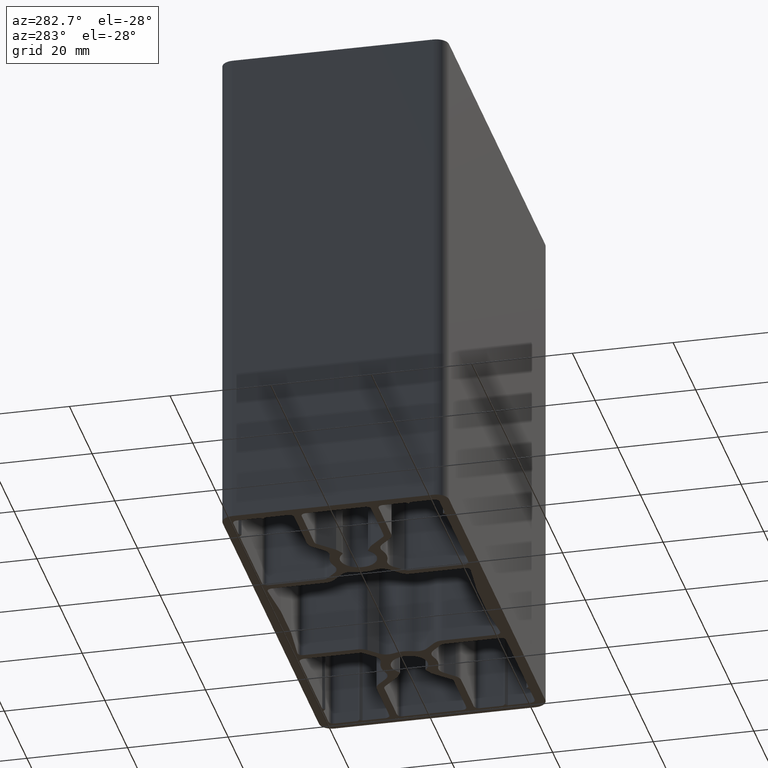
[diagram: clean part render]
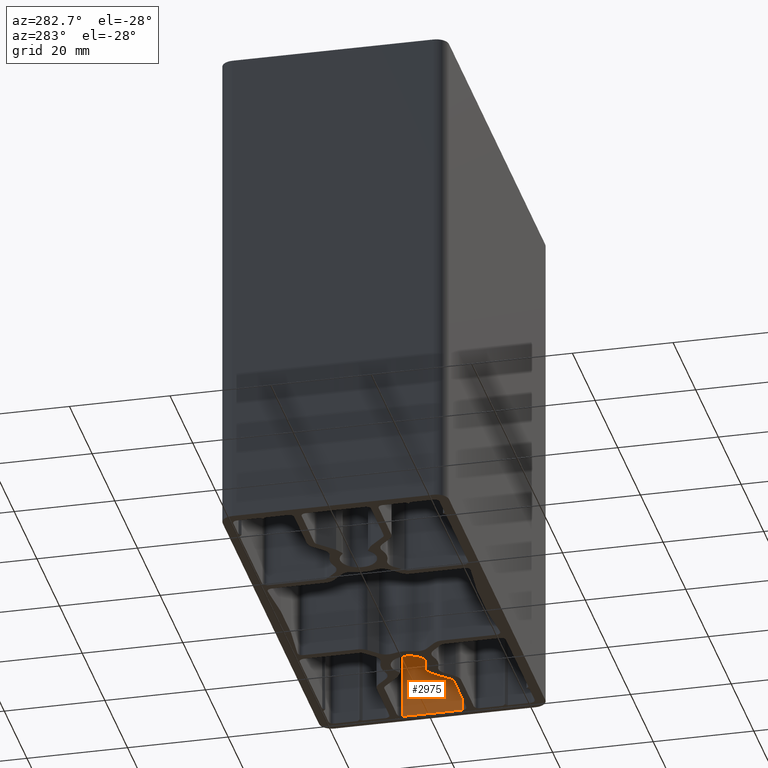
[diagram: same view with one face highlighted and labeled with its STEP entity id]
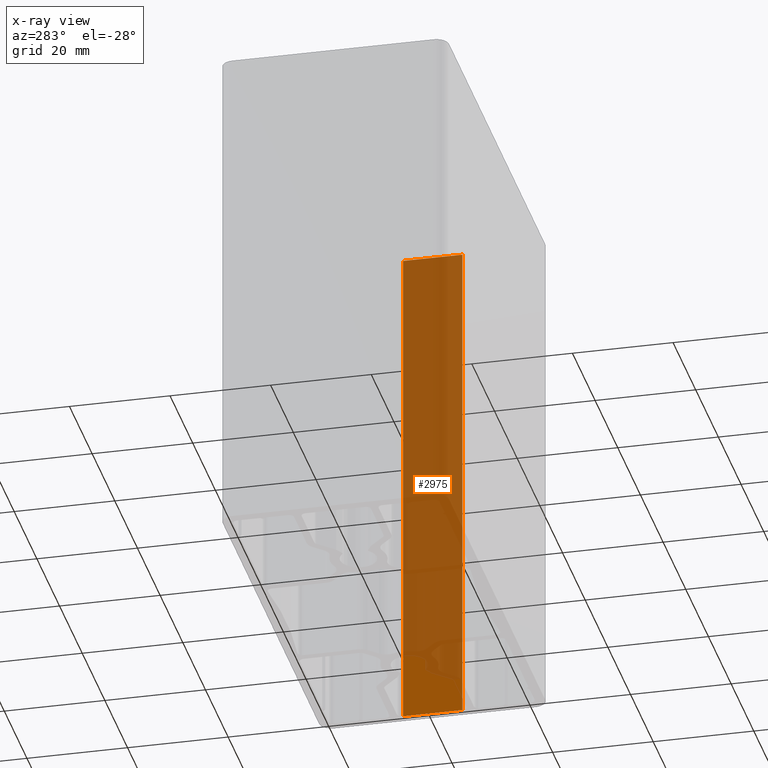
[diagram: x-ray of the same camera — body ghosted, the highlighted face saturated]
A machine part, auxiliary view. The second image highlights one B-rep face of the part: STEP entity #2975.
The next image is the same camera in x-ray: the body ghosted, the highlighted face saturated — about 90% of this face is hidden behind the body in this view.
In plain terms, the highlighted planar face has unit normal (1, 0, 0).
Its self-contained STEP definition (entity closure, byte-faithful):
#335=FACE_OUTER_BOUND('',#485,.T.);
#485=EDGE_LOOP('',(#2311,#2312,#2313,#2314));
#761=LINE('',#4807,#1069);
#762=LINE('',#4811,#1070);
#763=LINE('',#4813,#1071);
#764=LINE('',#4814,#1072);
#1069=VECTOR('',#3913,100.);
#1070=VECTOR('',#3918,11.8);
#1071=VECTOR('',#3919,100.);
#1072=VECTOR('',#3920,11.8);
#1367=VERTEX_POINT('',#4804);
#1368=VERTEX_POINT('',#4806);
#1369=VERTEX_POINT('',#4810);
#1370=VERTEX_POINT('',#4812);
#1764=EDGE_CURVE('',#1368,#1367,#761,.T.);
#1766=EDGE_CURVE('',#1369,#1367,#762,.T.);
#1767=EDGE_CURVE('',#1370,#1369,#763,.T.);
#1768=EDGE_CURVE('',#1368,#1370,#764,.T.);
#2311=ORIENTED_EDGE('',*,*,#1766,.F.);
#2312=ORIENTED_EDGE('',*,*,#1767,.F.);
#2313=ORIENTED_EDGE('',*,*,#1768,.F.);
#2314=ORIENTED_EDGE('',*,*,#1764,.T.);
#2847=PLANE('',#3219);
#2975=ADVANCED_FACE('',(#335),#2847,.F.);
#3219=AXIS2_PLACEMENT_3D('',#4809,#3916,#3917);
#3913=DIRECTION('',(0.,0.,1.));
#3916=DIRECTION('center_axis',(1.,0.,0.));
#3917=DIRECTION('ref_axis',(0.,1.,0.));
#3918=DIRECTION('',(0.,-1.,0.));
#3919=DIRECTION('',(0.,0.,1.));
#3920=DIRECTION('',(0.,1.,0.));
#4804=CARTESIAN_POINT('',(43.,-5.9,100.));
#4806=CARTESIAN_POINT('',(43.,-5.9,0.));
#4807=CARTESIAN_POINT('',(43.,-5.9,0.));
#4809=CARTESIAN_POINT('Origin',(43.,-5.9,0.));
#4810=CARTESIAN_POINT('',(43.,5.90000000000005,100.));
#4811=CARTESIAN_POINT('',(43.,-2.95,100.));
#4812=CARTESIAN_POINT('',(43.,5.90000000000005,0.));
#4813=CARTESIAN_POINT('',(43.,5.90000000000005,0.));
#4814=CARTESIAN_POINT('',(43.,-2.95,0.));